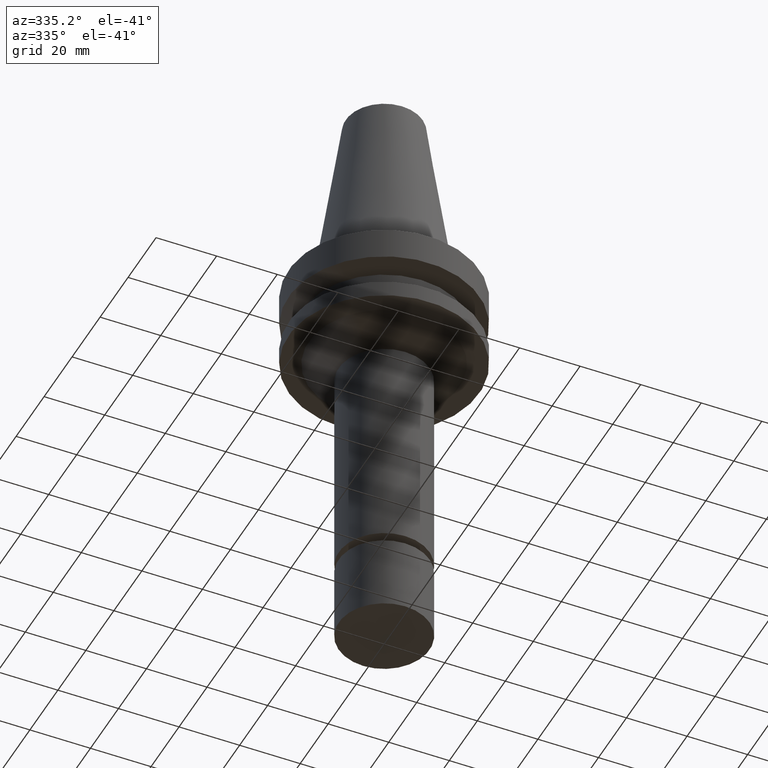
[diagram: clean part render]
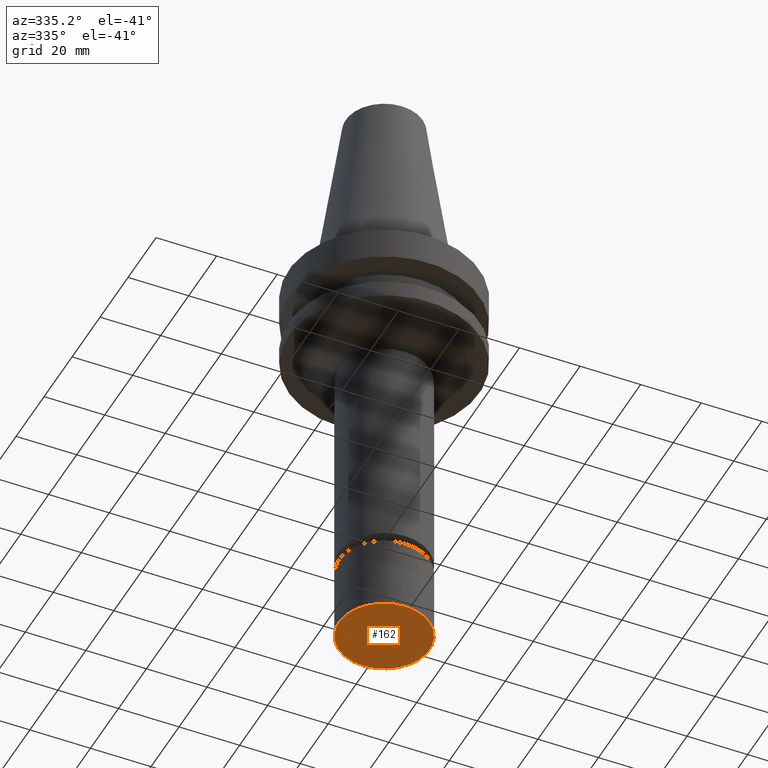
[diagram: same view with one face highlighted and labeled with its STEP entity id]
A machine part, auxiliary view. The second image highlights one B-rep face of the part: STEP entity #162.
In plain terms, the highlighted planar face has unit normal (0, 0, -1).
Its self-contained STEP definition (entity closure, byte-faithful):
#137=EDGE_CURVE('Unnamed[1]',#294,#294,#295,.T.);
#162=ADVANCED_FACE('Unnamed[1]',(#333),#334,.T.);
#294=VERTEX_POINT('',#492);
#295=CIRCLE('',#493,14.9999999999999);
#333=FACE_OUTER_BOUND('',#541,.T.);
#334=PLANE('',#542);
#492=CARTESIAN_POINT('',(8.26636589424463E-015,15.0,-135.0));
#493=AXIS2_PLACEMENT_3D('',#681,#682,#683);
#541=EDGE_LOOP('',(#724));
#542=AXIS2_PLACEMENT_3D('',#725,#726,#727);
#681=CARTESIAN_POINT('',(8.26636589424463E-015,5.82112965077923E-014,-135.0));
#682=DIRECTION('',(6.12323399573677E-017,-9.41263592148422E-017,-1.0));
#683=DIRECTION('',(9.36424495623502E-034,1.0,-9.41263592148422E-017));
#724=ORIENTED_EDGE('',*,*,#137,.T.);
#725=CARTESIAN_POINT('',(8.26636589424463E-015,7.50000000000001,-135.0));
#726=DIRECTION('',(6.12323399573677E-017,1.22464679914735E-016,-1.0));
#727=DIRECTION('',(-1.23259516440783E-032,1.0,1.22464679914735E-016));